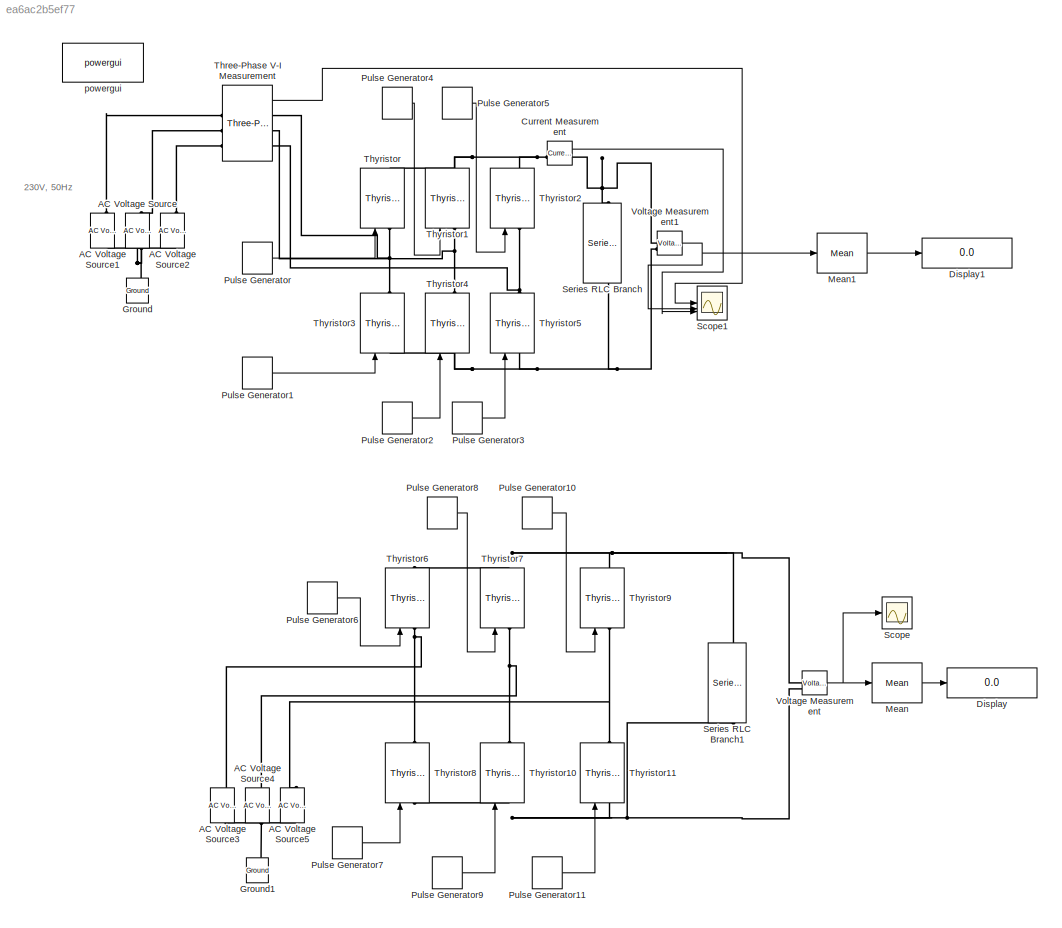
MODEL slx_ea6ac2b5ef77
KIND model
CONFIG AbsTol = auto
CONFIG EnableMultiTasking = off
CONFIG FixedStep = auto
CONFIG MaxStep = 1e-4
CONFIG MinStep = auto
CONFIG RelTol = 1e-3
CONFIG SampleTimeConstraint = Unconstrained
CONFIG SolverName = VariableStepAuto
CONFIG StartTime = 0.0
CONFIG StopTime = 10.0
BLOCK [Reference] AC Voltage Source  REF=spsACVoltageSourceLib/AC Voltage Source
  Commented = on
  LibrarySourceBlock = sps_lib/Sources/AC Voltage Source
  SourceBlock = spsACVoltageSourceLib/AC Voltage Source
  SourceType = AC Voltage Source
BLOCK [Reference] AC Voltage Source1  REF=spsACVoltageSourceLib/AC Voltage Source
  Commented = on
  LibrarySourceBlock = sps_lib/Sources/AC Voltage Source
  SourceBlock = spsACVoltageSourceLib/AC Voltage Source
  SourceType = AC Voltage Source
BLOCK [Reference] AC Voltage Source2  REF=spsACVoltageSourceLib/AC Voltage Source
  Commented = on
  LibrarySourceBlock = sps_lib/Sources/AC Voltage Source
  SourceBlock = spsACVoltageSourceLib/AC Voltage Source
  SourceType = AC Voltage Source
BLOCK [Reference] AC Voltage Source3  REF=spsACVoltageSourceLib/AC Voltage Source
  LibrarySourceBlock = sps_lib/Sources/AC Voltage Source
  SourceBlock = spsACVoltageSourceLib/AC Voltage Source
  SourceType = AC Voltage Source
BLOCK [Reference] AC Voltage Source4  REF=spsACVoltageSourceLib/AC Voltage Source
  LibrarySourceBlock = sps_lib/Sources/AC Voltage Source
  SourceBlock = spsACVoltageSourceLib/AC Voltage Source
  SourceType = AC Voltage Source
BLOCK [Reference] AC Voltage Source5  REF=spsACVoltageSourceLib/AC Voltage Source
  LibrarySourceBlock = sps_lib/Sources/AC Voltage Source
  SourceBlock = spsACVoltageSourceLib/AC Voltage Source
  SourceType = AC Voltage Source
BLOCK [Reference] Current Measurement  REF=spsCurrentMeasurementLib/Current Measurement
  Commented = on
  LibrarySourceBlock = sps_lib/Sensors and Measurements/Current Measurement
  SourceBlock = spsCurrentMeasurementLib/Current Measurement
  SourceType = Current Measurement
  UserDataPersistent = on
BLOCK [Display] Display
  Decimation = 1
BLOCK [Display] Display1
  Commented = on
  Decimation = 1
BLOCK [Reference] Ground  REF=spsGroundLib/Ground
  Commented = on
  LibrarySourceBlock = sps_lib/Utilities/Ground
  NameLocation = right
  SourceBlock = spsGroundLib/Ground
  SourceType = Ground
BLOCK [Reference] Ground1  REF=spsGroundLib/Ground
  LibrarySourceBlock = sps_lib/Utilities/Ground
  NameLocation = right
  SourceBlock = spsGroundLib/Ground
  SourceType = Ground
BLOCK [Reference] Mean  REF=spsMeanLib/Mean
  LibrarySourceBlock = sps_lib/Sensors and Measurements/Mean
  SourceBlock = spsMeanLib/Mean
  SourceType = Mean
BLOCK [Reference] Mean1  REF=spsMeanLib/Mean
  Commented = on
  LibrarySourceBlock = sps_lib/Sensors and Measurements/Mean
  SourceBlock = spsMeanLib/Mean
  SourceType = Mean
BLOCK [DiscretePulseGenerator] Pulse Generator
  Commented = on
  Period = 0.02
  PhaseDelay = 60*(0.02/360)
  PulseType = Time based
  PulseWidth = 33.33
BLOCK [DiscretePulseGenerator] Pulse Generator1
  Commented = on
  Period = 0.02
  PhaseDelay = 240*(0.02/360)
  PulseType = Time based
  PulseWidth = 33.33
BLOCK [DiscretePulseGenerator] Pulse Generator10
  Period = 1/50
  PhaseDelay = (0.02/360)*300
  PulseType = Time based
  PulseWidth = 33.33
BLOCK [DiscretePulseGenerator] Pulse Generator11
  Period = 1/50
  PhaseDelay = (0.02/360)*120
  PulseType = Time based
  PulseWidth = 33.33
BLOCK [DiscretePulseGenerator] Pulse Generator2
  Commented = on
  Period = 0.02
  PhaseDelay = 360*(0.02/360)
  PulseType = Time based
  PulseWidth = 33.33
BLOCK [DiscretePulseGenerator] Pulse Generator3
  Commented = on
  Period = 0.02
  PhaseDelay = 120*(0.02/360)
  PulseType = Time based
  PulseWidth = 33.33
BLOCK [DiscretePulseGenerator] Pulse Generator4
  Commented = on
  Period = 0.02
  PhaseDelay = 180*(0.02/360)
  PulseType = Time based
  PulseWidth = 33.33
BLOCK [DiscretePulseGenerator] Pulse Generator5
  Commented = on
  Period = 0.02
  PhaseDelay = 300*(0.02/360)
  PulseType = Time based
  PulseWidth = 33.33
BLOCK [DiscretePulseGenerator] Pulse Generator6
  Period = 1/50
  PhaseDelay = (0.02/360)*60
  PulseType = Time based
  PulseWidth = 33.33
BLOCK [DiscretePulseGenerator] Pulse Generator7
  Period = 1/50
  PhaseDelay = (0.02/360)*240
  PulseType = Time based
  PulseWidth = 33.33
BLOCK [DiscretePulseGenerator] Pulse Generator8
  Period = 1/50
  PhaseDelay = (0.02/360)*180
  PulseType = Time based
  PulseWidth = 33.33
BLOCK [DiscretePulseGenerator] Pulse Generator9
  Period = 1/50
  PhaseDelay = (0.02/360)*360
  PulseType = Time based
  PulseWidth = 33.33
BLOCK [Scope] Scope
  Floating = off
  NumInputPorts = 1
  ScopeSpecificationString = Simulink.scopes.TimeScopeBlockCfg('CurrentConfiguration', extmgr.ConfigurationSet(extmgr.Configuration('Core','General UI',true),extmgr.Configuration('Core','Source UI',true),extmgr.Configuration('Sources','WiredSimulink',true,'DataLoggingVariableName','ScopeData1'),extmgr.Configuration('Visuals','Time Domain',true),extmgr.Configuration('Tools','Plot Navigation',true),extmgr.Configuration('Tools',...<+40ch>
BLOCK [Scope] Scope1
  Commented = on
  Floating = off
  NumInputPorts = 3
  ScopeSpecificationString = Simulink.scopes.TimeScopeBlockCfg('CurrentConfiguration', extmgr.ConfigurationSet(extmgr.Configuration('Core','General UI',true),extmgr.Configuration('Core','Source UI',true),extmgr.Configuration('Sources','WiredSimulink',true),extmgr.Configuration('Visuals','Time Domain',true,'SerializedDisplays',{struct('MinYLimReal','-406.5864','MaxYLimReal','406.5864','YLabelReal','','MinYLimMag',' 0.00000','M...<+3174ch>
BLOCK [Reference] Series RLC Branch  REF=spsSeriesRLCBranchLib/Series RLC Branch
  Commented = on
  LibrarySourceBlock = sps_lib/Passives/Series RLC Branch
  NameLocation = left
  SourceBlock = spsSeriesRLCBranchLib/Series RLC Branch
  SourceType = Series RLC Branch
BLOCK [Reference] Series RLC Branch1  REF=spsSeriesRLCBranchLib/Series RLC Branch
  LibrarySourceBlock = sps_lib/Passives/Series RLC Branch
  NameLocation = left
  SourceBlock = spsSeriesRLCBranchLib/Series RLC Branch
  SourceType = Series RLC Branch
BLOCK [Reference] Three-Phase V-I Measurement  REF=spsThreePhaseVIMeasurementLib/Three-Phase
V-I Measurement
  Commented = on
  LibrarySourceBlock = sps_lib/Sensors and Measurements/Three-Phase\nV-I Measurement
  SourceBlock = spsThreePhaseVIMeasurementLib/Three-Phase\nV-I Measurement
  SourceType = Three-Phase VI Measurement
BLOCK [Reference] Thyristor  REF=spsThyristorLib/Thyristor
  Commented = on
  LibrarySourceBlock = sps_lib/Power Electronics/Thyristor
  NameLocation = right
  SourceBlock = spsThyristorLib/Thyristor
  SourceType = Thyristor
BLOCK [Reference] Thyristor1  REF=spsThyristorLib/Thyristor
  Commented = on
  LibrarySourceBlock = sps_lib/Power Electronics/Thyristor
  NameLocation = right
  SourceBlock = spsThyristorLib/Thyristor
  SourceType = Thyristor
BLOCK [Reference] Thyristor10  REF=spsThyristorLib/Thyristor
  LibrarySourceBlock = sps_lib/Power Electronics/Thyristor
  NameLocation = right
  SourceBlock = spsThyristorLib/Thyristor
  SourceType = Thyristor
BLOCK [Reference] Thyristor11  REF=spsThyristorLib/Thyristor
  LibrarySourceBlock = sps_lib/Power Electronics/Thyristor
  NameLocation = right
  SourceBlock = spsThyristorLib/Thyristor
  SourceType = Thyristor
BLOCK [Reference] Thyristor2  REF=spsThyristorLib/Thyristor
  Commented = on
  LibrarySourceBlock = sps_lib/Power Electronics/Thyristor
  NameLocation = right
  SourceBlock = spsThyristorLib/Thyristor
  SourceType = Thyristor
BLOCK [Reference] Thyristor3  REF=spsThyristorLib/Thyristor
  Commented = on
  LibrarySourceBlock = sps_lib/Power Electronics/Thyristor
  NameLocation = right
  SourceBlock = spsThyristorLib/Thyristor
  SourceType = Thyristor
BLOCK [Reference] Thyristor4  REF=spsThyristorLib/Thyristor
  Commented = on
  LibrarySourceBlock = sps_lib/Power Electronics/Thyristor
  NameLocation = right
  SourceBlock = spsThyristorLib/Thyristor
  SourceType = Thyristor
BLOCK [Reference] Thyristor5  REF=spsThyristorLib/Thyristor
  Commented = on
  LibrarySourceBlock = sps_lib/Power Electronics/Thyristor
  NameLocation = right
  SourceBlock = spsThyristorLib/Thyristor
  SourceType = Thyristor
BLOCK [Reference] Thyristor6  REF=spsThyristorLib/Thyristor
  LibrarySourceBlock = sps_lib/Power Electronics/Thyristor
  NameLocation = right
  SourceBlock = spsThyristorLib/Thyristor
  SourceType = Thyristor
BLOCK [Reference] Thyristor7  REF=spsThyristorLib/Thyristor
  LibrarySourceBlock = sps_lib/Power Electronics/Thyristor
  NameLocation = right
  SourceBlock = spsThyristorLib/Thyristor
  SourceType = Thyristor
BLOCK [Reference] Thyristor8  REF=spsThyristorLib/Thyristor
  LibrarySourceBlock = sps_lib/Power Electronics/Thyristor
  NameLocation = right
  SourceBlock = spsThyristorLib/Thyristor
  SourceType = Thyristor
BLOCK [Reference] Thyristor9  REF=spsThyristorLib/Thyristor
  LibrarySourceBlock = sps_lib/Power Electronics/Thyristor
  NameLocation = right
  SourceBlock = spsThyristorLib/Thyristor
  SourceType = Thyristor
BLOCK [Reference] Voltage Measurement  REF=spsVoltageMeasurementLib/Voltage Measurement
  LibrarySourceBlock = sps_lib/Sensors and Measurements/Voltage Measurement
  SourceBlock = spsVoltageMeasurementLib/Voltage Measurement
  SourceType = Voltage Measurement
  UserDataPersistent = on
BLOCK [Reference] Voltage Measurement1  REF=spsVoltageMeasurementLib/Voltage Measurement
  Commented = on
  LibrarySourceBlock = sps_lib/Sensors and Measurements/Voltage Measurement
  SourceBlock = spsVoltageMeasurementLib/Voltage Measurement
  SourceType = Voltage Measurement
  UserDataPersistent = on
BLOCK [Reference] powergui  REF=sps_lib/powergui
  LibrarySourceBlock = sps_lib/powergui
  Priority = 1
  SourceBlock = sps_lib/powergui
  SourceType = PSB option menu block
ANNOTATION (root): 230V, 50Hz
LINE Current Measurement:1 -> Scope1:3
LINE Mean1:1 -> Display1:1
LINE Mean:1 -> Display:1
LINE Pulse Generator10:1 -> Thyristor9:1
LINE Pulse Generator11:1 -> Thyristor11:1
LINE Pulse Generator1:1 -> Thyristor3:1
LINE Pulse Generator2:1 -> Thyristor4:1
LINE Pulse Generator3:1 -> Thyristor5:1
LINE Pulse Generator4:1 -> Thyristor1:1
LINE Pulse Generator5:1 -> Thyristor2:1
LINE Pulse Generator6:1 -> Thyristor6:1
LINE Pulse Generator7:1 -> Thyristor8:1
LINE Pulse Generator8:1 -> Thyristor7:1
LINE Pulse Generator9:1 -> Thyristor10:1
LINE Pulse Generator:1 -> Thyristor:1
LINE Three-Phase V-I Measurement:1 -> Scope1:1
NET Voltage Measurement1:1 -> Mean1:1, Scope1:2
NET Voltage Measurement:1 -> Mean:1, Scope:1
PNET net1: AC Voltage Source1:LConn1 -- AC Voltage Source2:LConn1 -- AC Voltage Source:LConn1 -- Ground:LConn1
PLINE AC Voltage Source1:RConn1 -- Three-Phase V-I Measurement:LConn1
PLINE AC Voltage Source2:RConn1 -- Three-Phase V-I Measurement:LConn3
PNET net2: AC Voltage Source3:LConn1 -- AC Voltage Source4:LConn1 -- AC Voltage Source5:LConn1 -- Ground1:LConn1
PNET net3: AC Voltage Source3:RConn1 -- Thyristor6:LConn1 -- Thyristor8:RConn1
PNET net4: AC Voltage Source4:RConn1 -- Thyristor10:RConn1 -- Thyristor7:LConn1
PNET net5: AC Voltage Source5:RConn1 -- Thyristor11:RConn1 -- Thyristor9:LConn1
PLINE AC Voltage Source:RConn1 -- Three-Phase V-I Measurement:LConn2
PNET net6: Current Measurement:LConn1 -- Thyristor1:RConn1 -- Thyristor2:RConn1 -- Thyristor:RConn1
PNET net7: Current Measurement:RConn1 -- Series RLC Branch:LConn1 -- Voltage Measurement1:LConn1
PNET net8: Series RLC Branch1:LConn1 -- Thyristor6:RConn1 -- Thyristor7:RConn1 -- Thyristor9:RConn1 -- Voltage Measurement:LConn1
PNET net9: Series RLC Branch1:RConn1 -- Thyristor10:LConn1 -- Thyristor11:LConn1 -- Thyristor8:LConn1 -- Voltage Measurement:LConn2
PNET net10: Series RLC Branch:RConn1 -- Thyristor3:LConn1 -- Thyristor4:LConn1 -- Thyristor5:LConn1 -- Voltage Measurement1:LConn2
PNET net11: Three-Phase V-I Measurement:RConn1 -- Thyristor3:RConn1 -- Thyristor:LConn1
PNET net12: Three-Phase V-I Measurement:RConn2 -- Thyristor1:LConn1 -- Thyristor4:RConn1
PNET net13: Three-Phase V-I Measurement:RConn3 -- Thyristor2:LConn1 -- Thyristor5:RConn1
note: NET lines group one-source signal fan-out (src -> all destinations, sorted); 1:1 wires keep LINE; PNET lines group multi-terminal physical nets as a canonical sorted terminal list (undirected conserving connections); 2-terminal nets keep the pairwise PLINE form
